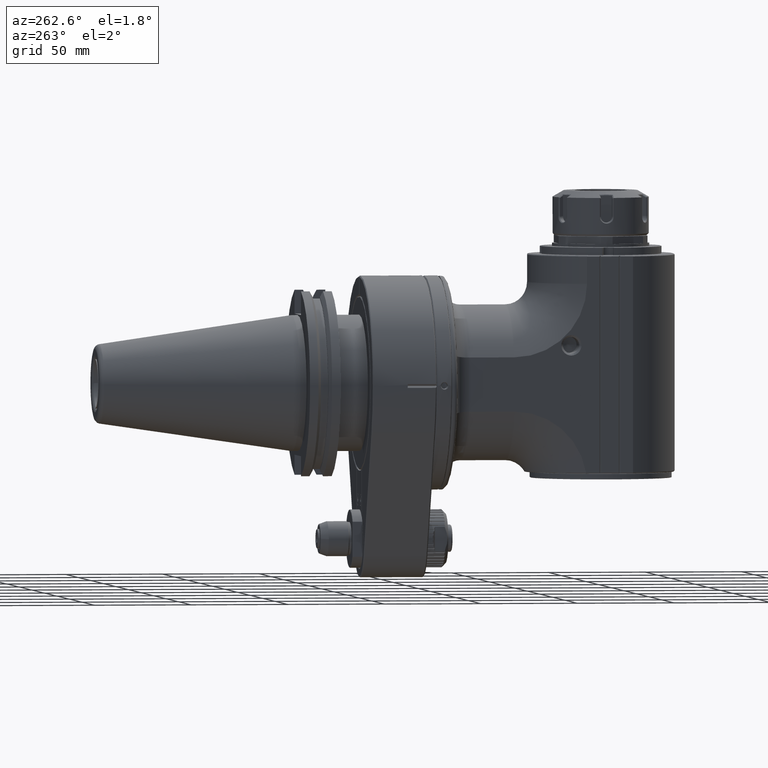
[diagram: clean part render]
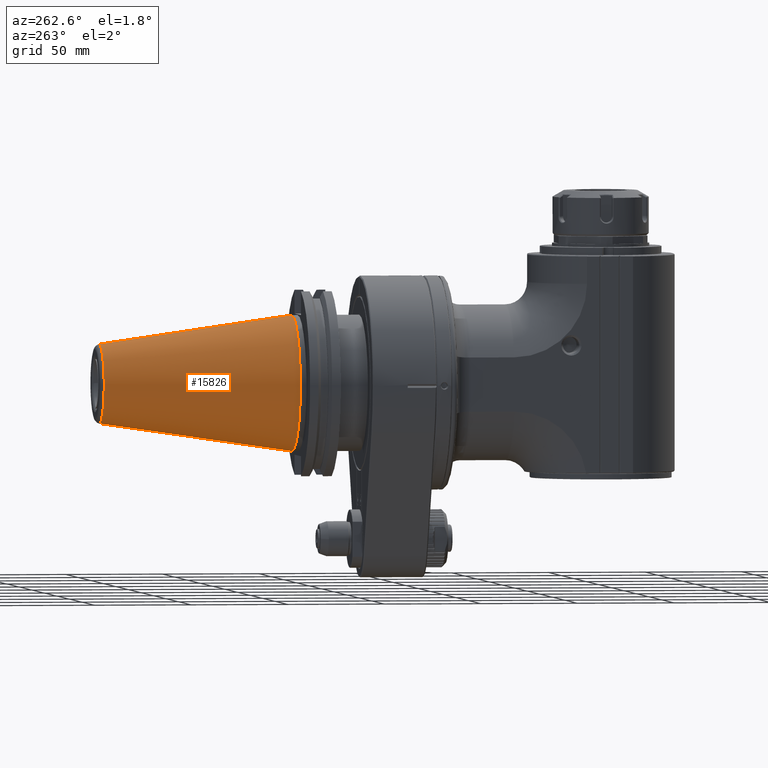
[diagram: same view with one face highlighted and labeled with its STEP entity id]
A machine part, auxiliary view. The second image highlights one B-rep face of the part: STEP entity #15826.
In plain terms, the highlighted conical surface has half-angle 8.3 deg.
Its self-contained STEP definition (entity closure, byte-faithful):
#230=CONICAL_SURFACE('',#17347,27.65552420652,0.144862327915529);
#2049=FACE_OUTER_BOUND('',#3004,.T.);
#3004=EDGE_LOOP('',(#14616,#14617,#14618,#14619,#14620));
#3640=CIRCLE('',#17344,20.38604841304);
#3642=CIRCLE('',#17346,20.38604841304);
#3643=CIRCLE('',#17348,34.925);
#4953=LINE('',#29889,#6275);
#6275=VECTOR('',#21555,27.65552420652);
#7768=VERTEX_POINT('',#29881);
#7769=VERTEX_POINT('',#29882);
#7770=VERTEX_POINT('',#29887);
#10062=EDGE_CURVE('',#7768,#7769,#3640,.T.);
#10064=EDGE_CURVE('',#7769,#7768,#3642,.T.);
#10065=EDGE_CURVE('',#7770,#7770,#3643,.T.);
#10066=EDGE_CURVE('',#7770,#7769,#4953,.T.);
#14616=ORIENTED_EDGE('',*,*,#10065,.F.);
#14617=ORIENTED_EDGE('',*,*,#10066,.T.);
#14618=ORIENTED_EDGE('',*,*,#10064,.T.);
#14619=ORIENTED_EDGE('',*,*,#10062,.T.);
#14620=ORIENTED_EDGE('',*,*,#10066,.F.);
#15826=ADVANCED_FACE('',(#2049),#230,.T.);
#17344=AXIS2_PLACEMENT_3D('',#29883,#21545,#21546);
#17346=AXIS2_PLACEMENT_3D('',#29885,#21549,#21550);
#17347=AXIS2_PLACEMENT_3D('',#29886,#21551,#21552);
#17348=AXIS2_PLACEMENT_3D('',#29888,#21553,#21554);
#21545=DIRECTION('center_axis',(0.,-1.,0.));
#21546=DIRECTION('ref_axis',(0.00108059556212205,0.,0.999999416156445));
#21549=DIRECTION('center_axis',(0.,-1.,0.));
#21550=DIRECTION('ref_axis',(0.00108059556212205,0.,0.999999416156445));
#21551=DIRECTION('center_axis',(0.,-1.,0.));
#21552=DIRECTION('ref_axis',(0.,0.,1.));
#21553=DIRECTION('center_axis',(0.,-1.,0.));
#21554=DIRECTION('ref_axis',(0.,0.,-1.));
#21555=DIRECTION('',(-1.76785359492914E-17,0.989525789068969,0.144356201000973));
#29881=CARTESIAN_POINT('',(0.0220290734443338,167.6608905025,20.386036510777));
#29882=CARTESIAN_POINT('',(2.49657089362968E-15,167.660890502501,-20.3860484130436));
#29883=CARTESIAN_POINT('Origin',(0.,167.6608905025,-1.480248809205E-14));
#29885=CARTESIAN_POINT('Origin',(0.,167.6608905025,-1.480248809205E-14));
#29886=CARTESIAN_POINT('Origin',(0.,117.83044525125,-1.480248809205E-14));
#29887=CARTESIAN_POINT('',(0.,68.,-34.925));
#29888=CARTESIAN_POINT('Origin',(0.,68.,-1.480248809205E-14));
#29889=CARTESIAN_POINT('',(3.38682491982569E-15,117.83044525125,-27.65552420652));